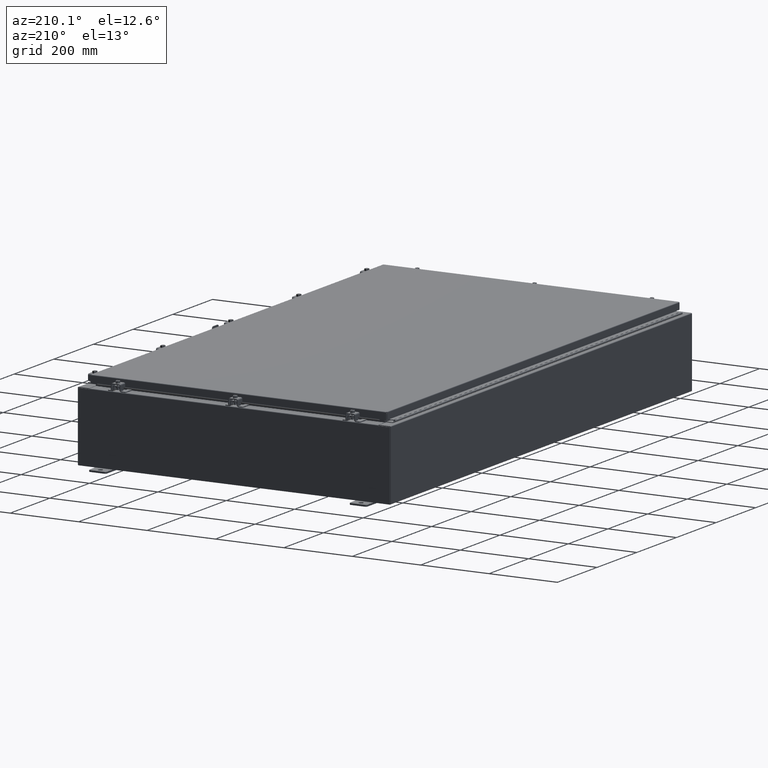
[diagram: clean part render]
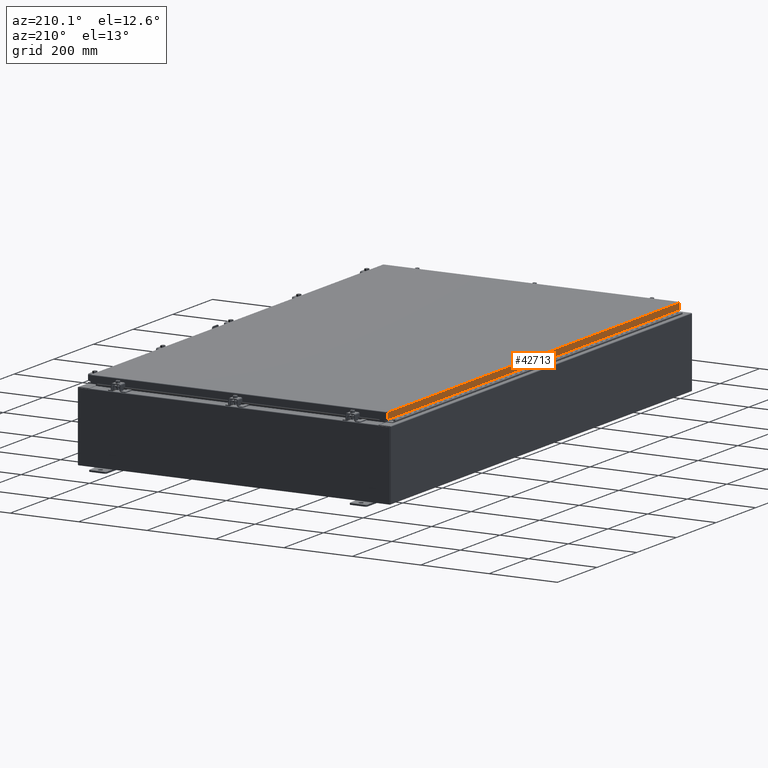
[diagram: same view with one face highlighted and labeled with its STEP entity id]
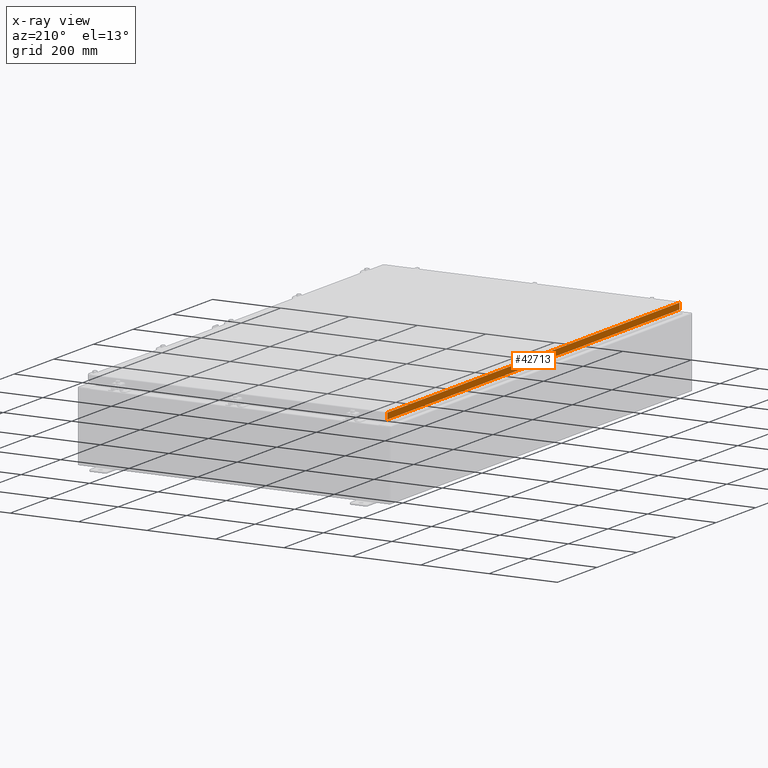
[diagram: x-ray of the same camera — body ghosted, the highlighted face saturated]
A machine part, auxiliary view. The second image highlights one B-rep face of the part: STEP entity #42713.
The next image is the same camera in x-ray: the body ghosted, the highlighted face saturated — about 0% of this face is hidden behind the body in this view.
In plain terms, the highlighted planar face has unit normal (1, -0, -0).
Its self-contained STEP definition (entity closure, byte-faithful):
#1655 = EDGE_LOOP ( 'NONE', ( #48917, #20253, #6266, #14491 ) ) ;
#3158 = CARTESIAN_POINT ( 'NONE',  ( -17.07799999999999900, -29.00515786437626500, -0.07469999999999976700 ) ) ;
#3576 = LINE ( 'NONE', #16700, #27079 ) ;
#6266 = ORIENTED_EDGE ( 'NONE', *, *, #37261, .F. ) ;
#6568 = LINE ( 'NONE', #3158, #46419 ) ;
#7041 = CARTESIAN_POINT ( 'NONE',  ( -17.07800000000000300, -29.09400000000000100, -0.7949999999999997100 ) ) ;
#12298 = DIRECTION ( 'NONE',  ( -3.034122441942816500E-015, 0.0000000000000000000, -1.000000000000000000 ) ) ;
#12546 = VERTEX_POINT ( 'NONE', #40362 ) ;
#13217 = DIRECTION ( 'NONE',  ( -3.034122441942816100E-015, 6.982962677686265900E-015, -1.000000000000000000 ) ) ;
#14491 = ORIENTED_EDGE ( 'NONE', *, *, #54469, .F. ) ;
#16700 = CARTESIAN_POINT ( 'NONE',  ( -17.07799999999999900, -29.09400000000000100, -0.08770000000000004200 ) ) ;
#20253 = ORIENTED_EDGE ( 'NONE', *, *, #50247, .T. ) ;
#21678 = DIRECTION ( 'NONE',  ( -7.511783855542057500E-017, -1.000000000000000000, -7.511783855542072300E-017 ) ) ;
#22037 = VERTEX_POINT ( 'NONE', #39085 ) ;
#23272 = CARTESIAN_POINT ( 'NONE',  ( -17.07799999999999600, 29.00515786437626500, 2.546194915468487600E-013 ) ) ;
#25710 = VECTOR ( 'NONE', #13217, 39.37007874015748100 ) ;
#27079 = VECTOR ( 'NONE', #21678, 39.37007874015748100 ) ;
#32288 = DIRECTION ( 'NONE',  ( 7.511783855542072300E-017, 1.000000000000000000, 1.220664876525586700E-016 ) ) ;
#33409 = VECTOR ( 'NONE', #32288, 39.37007874015748100 ) ;
#34991 = LINE ( 'NONE', #7041, #33409 ) ;
#37261 = EDGE_CURVE ( 'NONE', #12546, #45121, #34991, .T. ) ;
#37329 = CARTESIAN_POINT ( 'NONE',  ( -17.07799999999999600, 1.282862446849468500E-015, 5.207755671951099000E-014 ) ) ;
#38754 = CARTESIAN_POINT ( 'NONE',  ( -17.07799999999999600, 29.00515786437626500, -0.7949999999999926000 ) ) ;
#39085 = CARTESIAN_POINT ( 'NONE',  ( -17.07799999999999600, 29.00515786437626500, -0.08769999999999567000 ) ) ;
#40362 = CARTESIAN_POINT ( 'NONE',  ( -17.07800000000000300, -29.00515786437626200, -0.7949999999999996000 ) ) ;
#40706 = LINE ( 'NONE', #23272, #25710 ) ;
#42340 = DIRECTION ( 'NONE',  ( 1.000000000000000000, -7.511783855542035400E-017, -3.034122441942816500E-015 ) ) ;
#42713 = ADVANCED_FACE ( 'NONE', ( #53115 ), #51685, .F. ) ;
#45040 = VERTEX_POINT ( 'NONE', #62133 ) ;
#45121 = VERTEX_POINT ( 'NONE', #38754 ) ;
#46419 = VECTOR ( 'NONE', #57558, 39.37007874015748100 ) ;
#48917 = ORIENTED_EDGE ( 'NONE', *, *, #55702, .F. ) ;
#50247 = EDGE_CURVE ( 'NONE', #22037, #45121, #40706, .T. ) ;
#51685 = PLANE ( 'NONE',  #63042 ) ;
#53115 = FACE_OUTER_BOUND ( 'NONE', #1655, .T. ) ;
#54469 = EDGE_CURVE ( 'NONE', #45040, #12546, #6568, .T. ) ;
#55702 = EDGE_CURVE ( 'NONE', #22037, #45040, #3576, .T. ) ;
#57558 = DIRECTION ( 'NONE',  ( -3.034122441942816100E-015, 6.982962677686265900E-015, -1.000000000000000000 ) ) ;
#62133 = CARTESIAN_POINT ( 'NONE',  ( -17.07799999999999900, -29.00515786437626500, -0.08769999999999787700 ) ) ;
#63042 = AXIS2_PLACEMENT_3D ( 'NONE', #37329, #42340, #12298 ) ;